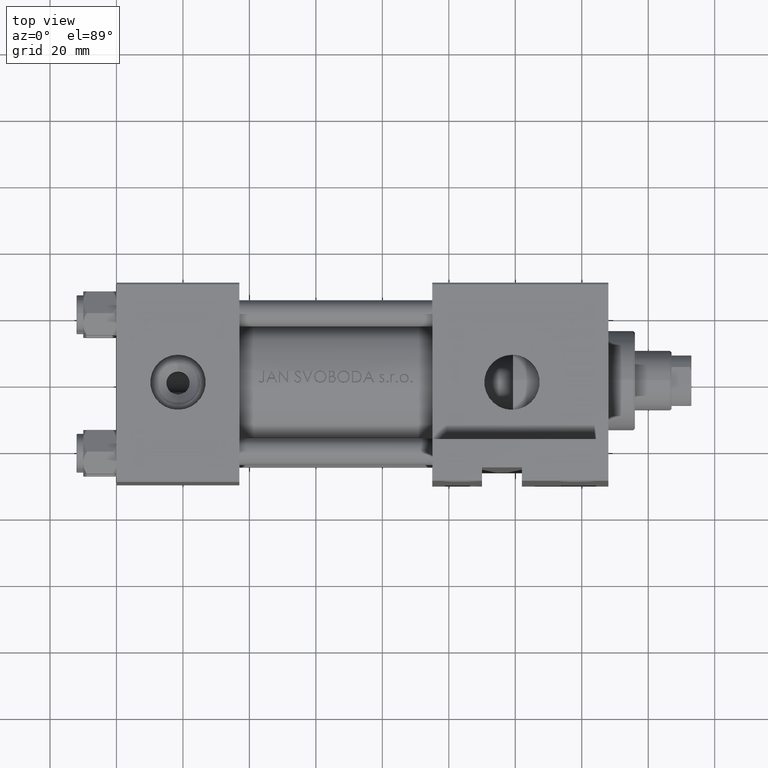
[diagram: clean part render]
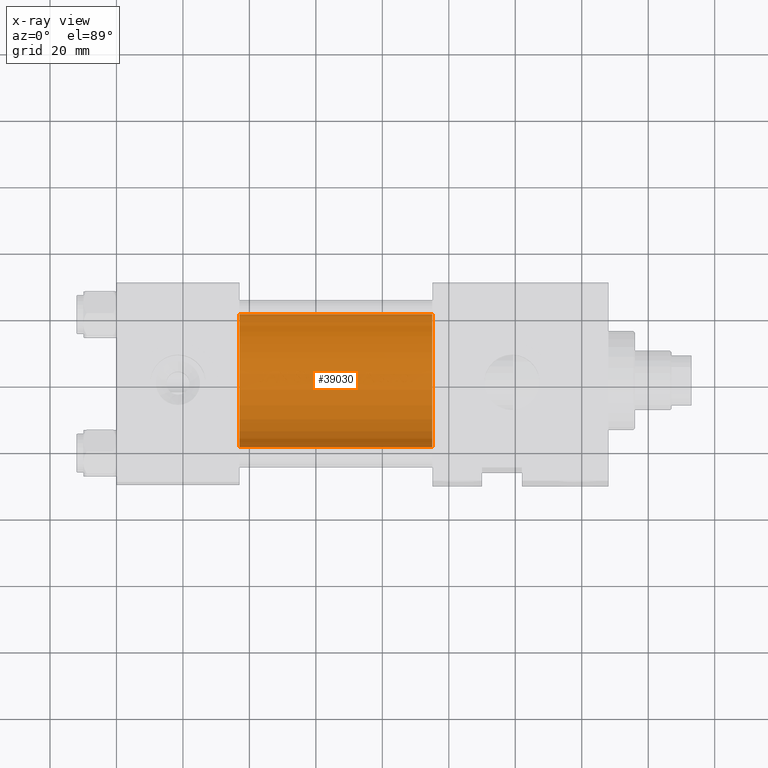
[diagram: x-ray — body ghosted, one internal face saturated and labeled with its STEP entity id]
A machine part, top view, then the same camera in x-ray: the body is ghosted and one INTERNAL B-rep face — a face not visible from any outside direction — is saturated and labeled: STEP entity #39030.
In plain terms, the highlighted cylindrical surface (partial cylindrical patch) has radius 20 mm, axis along (-1, -0, 0).
Its self-contained STEP definition (entity closure, byte-faithful):
#761 = VERTEX_POINT ( 'NONE', #36546 ) ;
#1361 = CARTESIAN_POINT ( 'NONE',  ( 37.00000000000000000, 2.326828918379970576E-15, -19.00000000000000000 ) ) ;
#2826 = CARTESIAN_POINT ( 'NONE',  ( 95.00000000000000000, 2.326828918379970576E-15, -19.00000000000000000 ) ) ;
#4069 = VECTOR ( 'NONE', #7171, 1000.000000000000000 ) ;
#5500 = DIRECTION ( 'NONE',  ( 0.000000000000000000, 0.000000000000000000, -1.000000000000000000 ) ) ;
#5809 = CARTESIAN_POINT ( 'NONE',  ( 95.00000000000000000, -1.224646799147354686E-16, 1.000000000000000888 ) ) ;
#5894 = VECTOR ( 'NONE', #40509, 1000.000000000000000 ) ;
#6346 = EDGE_CURVE ( 'NONE', #9419, #40232, #7016, .T. ) ;
#7016 = LINE ( 'NONE', #47900, #5894 ) ;
#7171 = DIRECTION ( 'NONE',  ( -1.000000000000000000, -0.000000000000000000, -0.000000000000000000 ) ) ;
#9419 = VERTEX_POINT ( 'NONE', #2826 ) ;
#10508 = EDGE_CURVE ( 'NONE', #9419, #11147, #46952, .T. ) ;
#11104 = LINE ( 'NONE', #26120, #4069 ) ;
#11147 = VERTEX_POINT ( 'NONE', #40047 ) ;
#11679 = DIRECTION ( 'NONE',  ( 1.000000000000000000, 0.000000000000000000, 0.000000000000000000 ) ) ;
#13004 = AXIS2_PLACEMENT_3D ( 'NONE', #5809, #27991, #23546 ) ;
#14693 = EDGE_CURVE ( 'NONE', #40232, #761, #15486, .T. ) ;
#15486 = CIRCLE ( 'NONE', #45400, 20.00000000000000000 ) ;
#19443 = ORIENTED_EDGE ( 'NONE', *, *, #10508, .T. ) ;
#19520 = CARTESIAN_POINT ( 'NONE',  ( 95.00000000000000000, -1.224646799147354686E-16, 1.000000000000000888 ) ) ;
#23505 = EDGE_LOOP ( 'NONE', ( #23935, #19443, #28128, #35702 ) ) ;
#23546 = DIRECTION ( 'NONE',  ( 0.000000000000000000, 0.000000000000000000, 1.000000000000000000 ) ) ;
#23935 = ORIENTED_EDGE ( 'NONE', *, *, #6346, .F. ) ;
#26120 = CARTESIAN_POINT ( 'NONE',  ( 95.00000000000000000, -1.224646799147354686E-16, 21.00000000000000000 ) ) ;
#27400 = DIRECTION ( 'NONE',  ( 0.000000000000000000, 0.000000000000000000, -1.000000000000000000 ) ) ;
#27991 = DIRECTION ( 'NONE',  ( -1.000000000000000000, -0.000000000000000000, -0.000000000000000000 ) ) ;
#28128 = ORIENTED_EDGE ( 'NONE', *, *, #31062, .T. ) ;
#31062 = EDGE_CURVE ( 'NONE', #11147, #761, #11104, .T. ) ;
#34553 = DIRECTION ( 'NONE',  ( 1.000000000000000000, 0.000000000000000000, 0.000000000000000000 ) ) ;
#35702 = ORIENTED_EDGE ( 'NONE', *, *, #14693, .F. ) ;
#36546 = CARTESIAN_POINT ( 'NONE',  ( 37.00000000000000000, -1.224646799147354686E-16, 21.00000000000000000 ) ) ;
#38590 = FACE_OUTER_BOUND ( 'NONE', #23505, .T. ) ;
#38826 = CYLINDRICAL_SURFACE ( 'NONE', #13004, 20.00000000000000000 ) ;
#39030 = ADVANCED_FACE ( 'NONE', ( #38590 ), #38826, .F. ) ;
#40047 = CARTESIAN_POINT ( 'NONE',  ( 95.00000000000000000, -1.224646799147354686E-16, 21.00000000000000000 ) ) ;
#40232 = VERTEX_POINT ( 'NONE', #1361 ) ;
#40509 = DIRECTION ( 'NONE',  ( -1.000000000000000000, -0.000000000000000000, -0.000000000000000000 ) ) ;
#41962 = CARTESIAN_POINT ( 'NONE',  ( 37.00000000000000000, -1.224646799147354686E-16, 1.000000000000000888 ) ) ;
#43792 = AXIS2_PLACEMENT_3D ( 'NONE', #19520, #34553, #27400 ) ;
#45400 = AXIS2_PLACEMENT_3D ( 'NONE', #41962, #11679, #5500 ) ;
#46952 = CIRCLE ( 'NONE', #43792, 20.00000000000000000 ) ;
#47900 = CARTESIAN_POINT ( 'NONE',  ( 95.00000000000000000, 2.326828918379970576E-15, -19.00000000000000000 ) ) ;